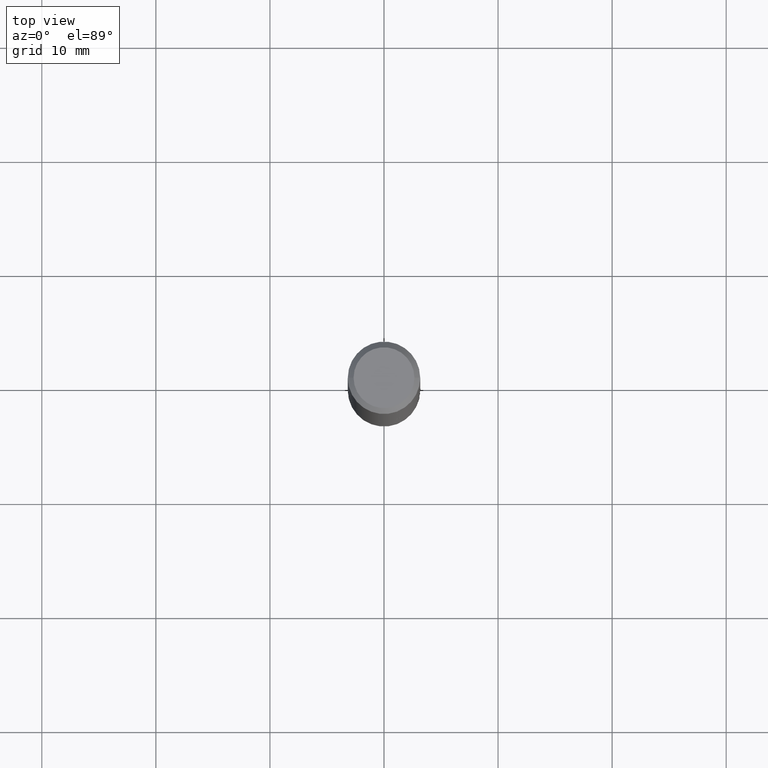
[diagram: clean part render]
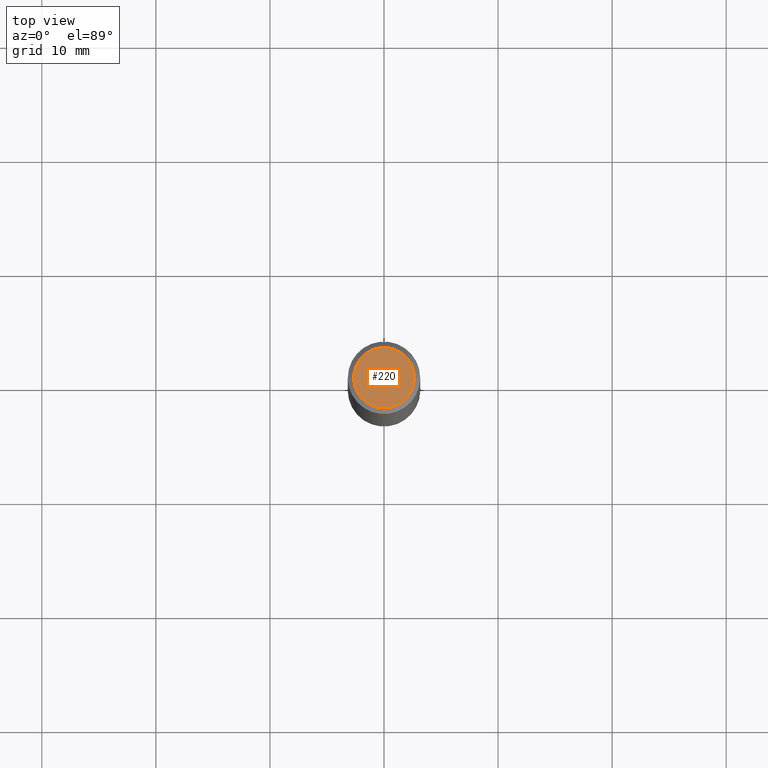
[diagram: same view with one face highlighted and labeled with its STEP entity id]
A machine part, top view. The second image highlights one B-rep face of the part: STEP entity #220.
In plain terms, the highlighted planar face has unit normal (0, -0, -1).
Its self-contained STEP definition (entity closure, byte-faithful):
#8 = CARTESIAN_POINT ( 'NONE',  ( -0.1049999999999998018, 7.681258945454876027E-16, -1.707404996040689597E-17 ) ) ;
#18 = EDGE_CURVE ( 'NONE', #214, #176, #343, .T. ) ;
#34 = AXIS2_PLACEMENT_3D ( 'NONE', #300, #194, #250 ) ;
#37 = DIRECTION ( 'NONE',  ( 1.000000000000000000, -6.982962677686265922E-15, 4.876206205277402997E-29 ) ) ;
#127 = AXIS2_PLACEMENT_3D ( 'NONE', #342, #222, #307 ) ;
#134 = ORIENTED_EDGE ( 'NONE', *, *, #182, .T. ) ;
#148 = CIRCLE ( 'NONE', #216, 0.1049999999999998018 ) ;
#176 = VERTEX_POINT ( 'NONE', #178 ) ;
#178 = CARTESIAN_POINT ( 'NONE',  ( 0.1049999999999998018, -8.238720831321562839E-16, -1.707404996039620013E-17 ) ) ;
#182 = EDGE_CURVE ( 'NONE', #176, #214, #148, .T. ) ;
#183 = EDGE_LOOP ( 'NONE', ( #187, #134 ) ) ;
#187 = ORIENTED_EDGE ( 'NONE', *, *, #18, .T. ) ;
#194 = DIRECTION ( 'NONE',  ( 2.438088387897960049E-29, -3.491481338843145188E-15, -1.000000000000000000 ) ) ;
#202 = DIRECTION ( 'NONE',  ( -2.445468806185136597E-29, 3.491481338843145583E-15, 1.000000000000000000 ) ) ;
#214 = VERTEX_POINT ( 'NONE', #8 ) ;
#216 = AXIS2_PLACEMENT_3D ( 'NONE', #282, #202, #37 ) ;
#220 = ADVANCED_FACE ( 'NONE', ( #274 ), #346, .F. ) ;
#222 = DIRECTION ( 'NONE',  ( -2.445468806185136597E-29, 3.491481338843145583E-15, 1.000000000000000000 ) ) ;
#250 = DIRECTION ( 'NONE',  ( -1.000000000000000000, 6.982962677686265922E-15, -4.876176775795935793E-29 ) ) ;
#274 = FACE_OUTER_BOUND ( 'NONE', #183, .T. ) ;
#282 = CARTESIAN_POINT ( 'NONE',  ( 4.175405657340879278E-46, -5.961372681521788801E-32, -1.707404996040164512E-17 ) ) ;
#300 = CARTESIAN_POINT ( 'NONE',  ( 7.332110811570565452E-16, 0.1049999999999998018, -3.751425655587304572E-16 ) ) ;
#307 = DIRECTION ( 'NONE',  ( 1.000000000000000000, -6.982962677686265922E-15, 4.876206205277402997E-29 ) ) ;
#342 = CARTESIAN_POINT ( 'NONE',  ( 4.175405657340879278E-46, -5.961372681521788801E-32, -1.707404996040164512E-17 ) ) ;
#343 = CIRCLE ( 'NONE', #127, 0.1049999999999998018 ) ;
#346 = PLANE ( 'NONE',  #34 ) ;